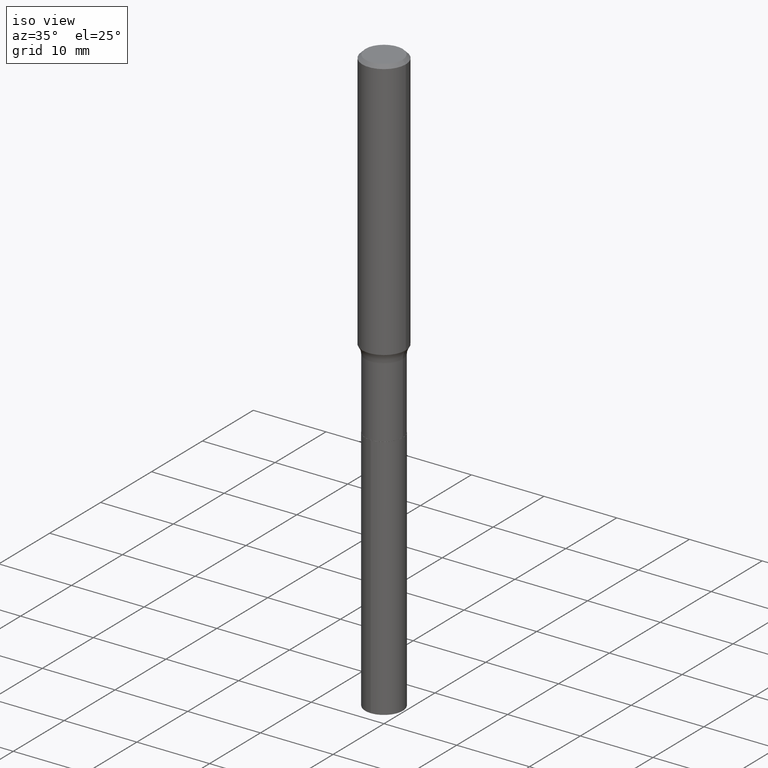
[diagram: clean part render]
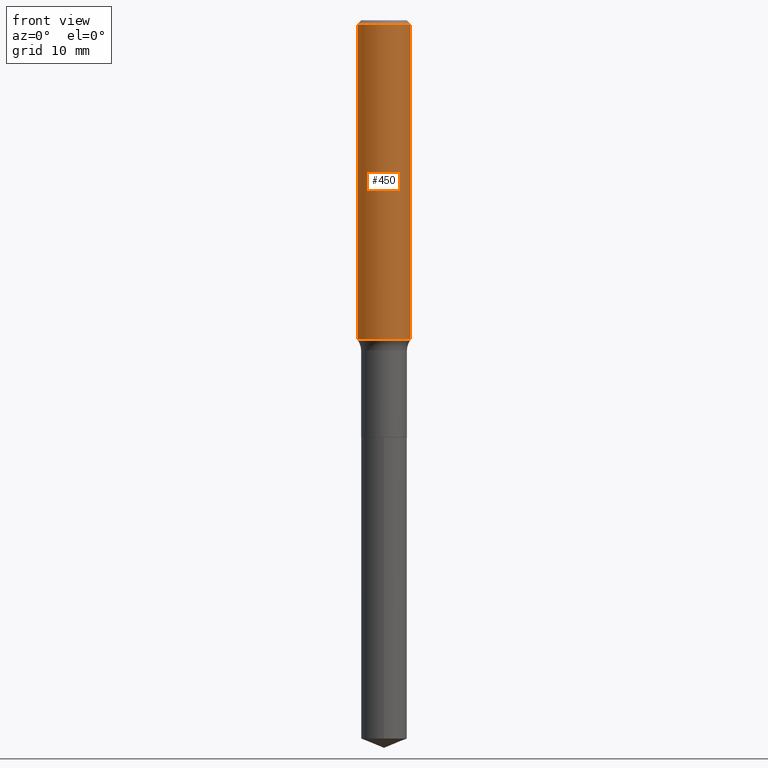
[diagram: tour spotlight — one face highlighted and labeled with its STEP entity id]
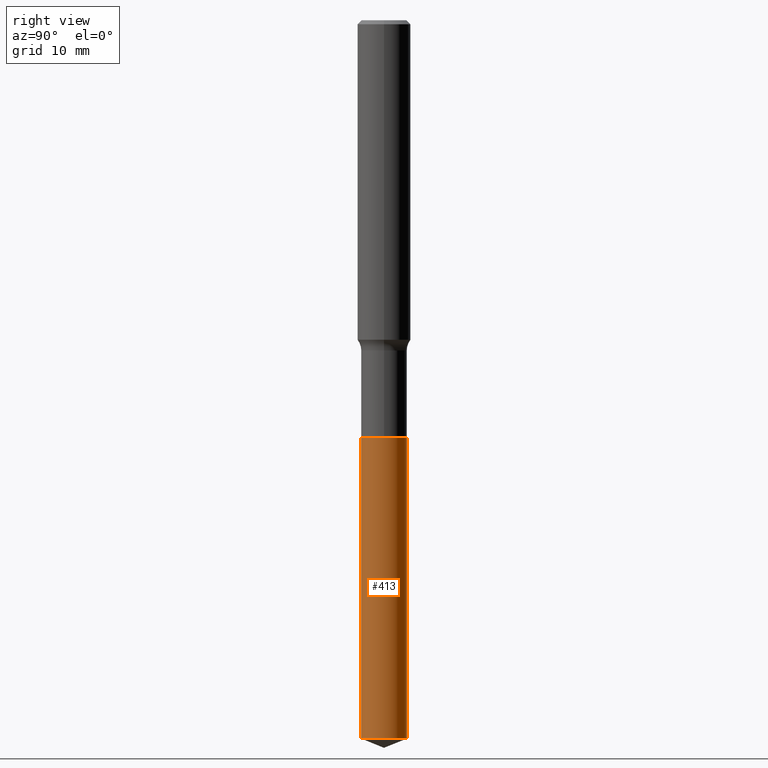
[diagram: tour spotlight — one face highlighted and labeled with its STEP entity id]
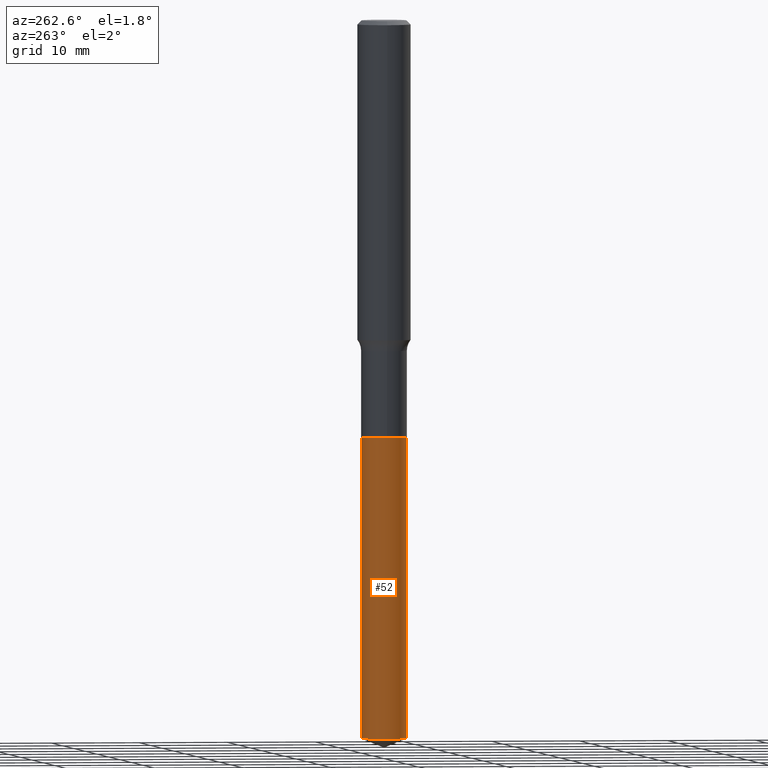
[diagram: tour spotlight — one face highlighted and labeled with its STEP entity id]
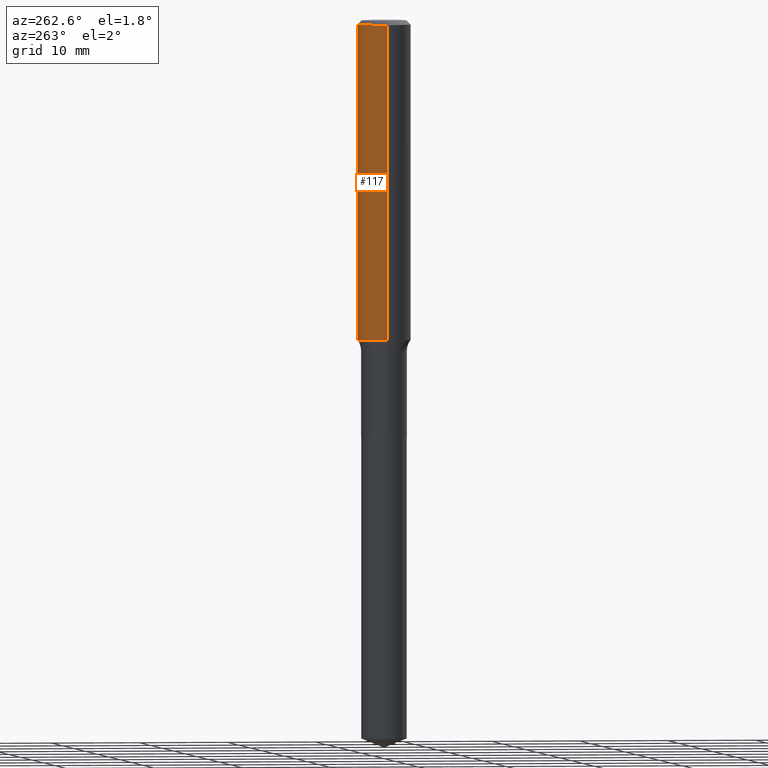
[diagram: tour spotlight — one face highlighted and labeled with its STEP entity id]
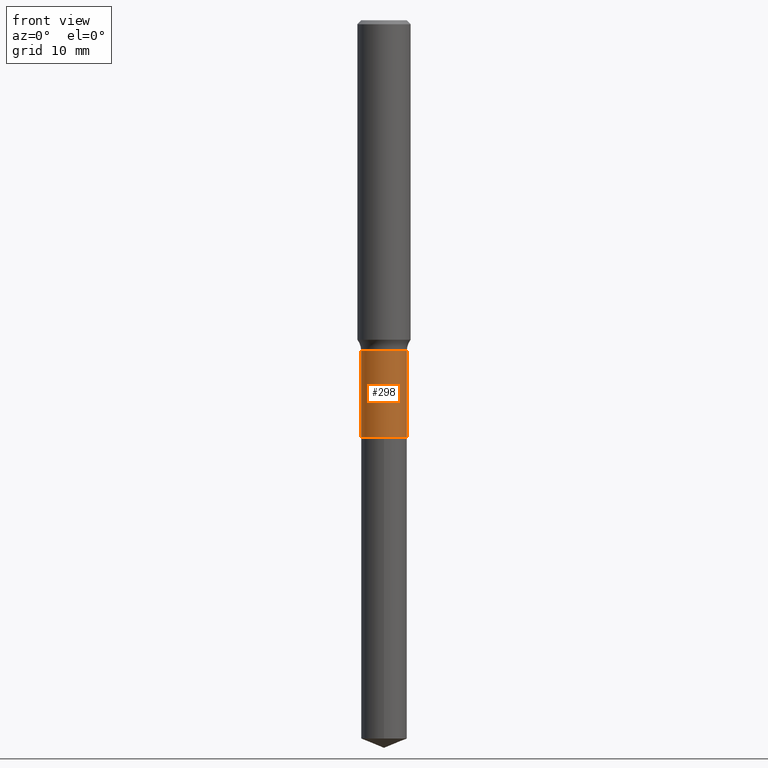
[diagram: tour spotlight — one face highlighted and labeled with its STEP entity id]
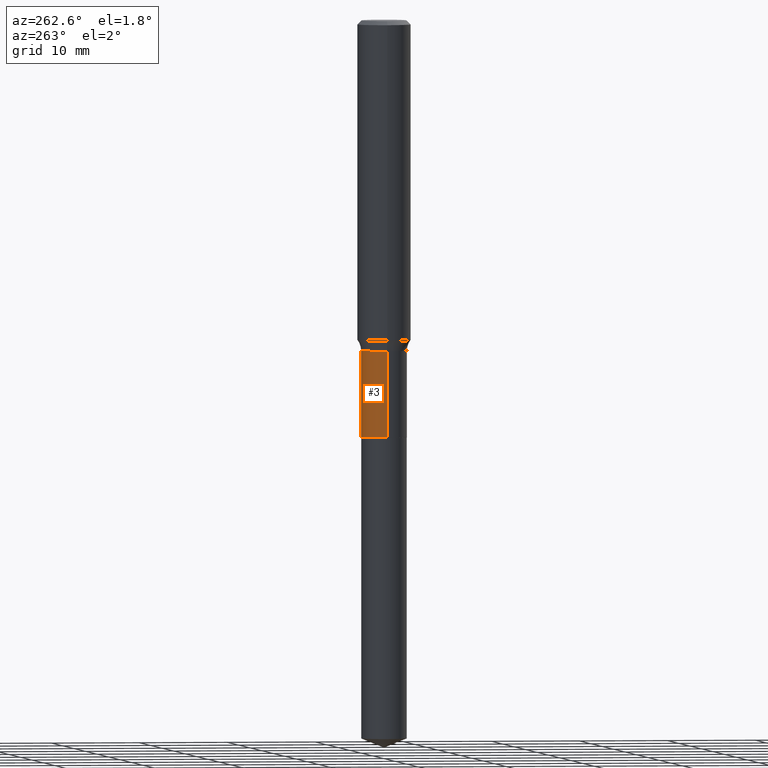
[diagram: tour spotlight — one face highlighted and labeled with its STEP entity id]
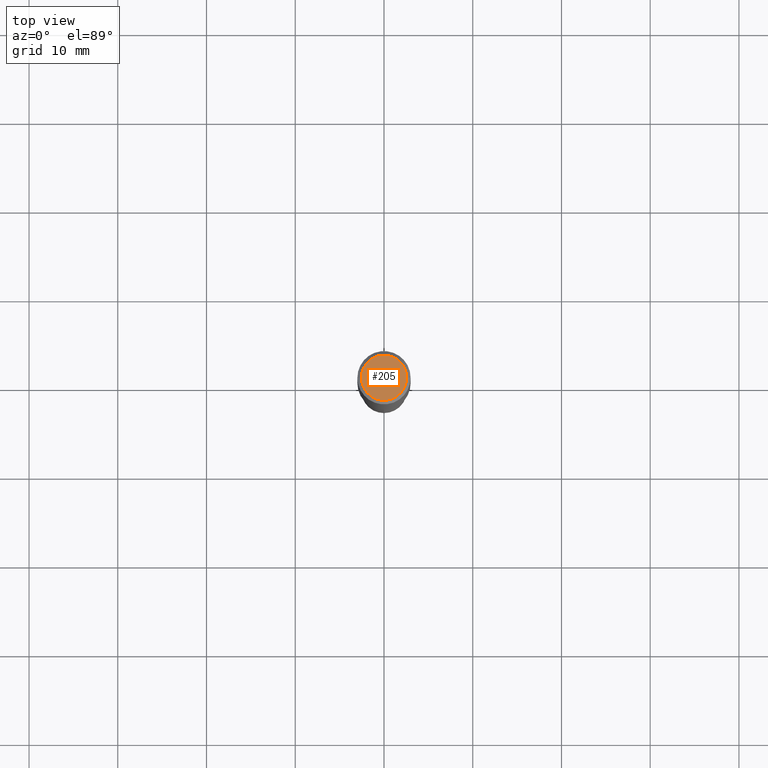
[diagram: tour spotlight — one face highlighted and labeled with its STEP entity id]
A machine part: a face-by-face anatomy tour. The part has 17 B-rep faces; the first image is the clean iso view, then the 7 largest visible faces are spotlighted one at a time (largest first), each with its STEP entity span.

Face 1 — front view, entity #450. In plain terms, the highlighted cylindrical surface (edge-blend (fillet) strip) has radius 2.9997 mm, axis along (-0, 0, 1).
Definition (entity closure, byte-faithful):
#4 = DIRECTION ( 'NONE',  ( -2.445468806185136597E-29, 3.491481338843145583E-15, 1.000000000000000000 ) ) ;
#22 = AXIS2_PLACEMENT_3D ( 'NONE', #125, #354, #431 ) ;
#23 = ORIENTED_EDGE ( 'NONE', *, *, #134, .T. ) ;
#33 = AXIS2_PLACEMENT_3D ( 'NONE', #196, #4, #140 ) ;
#49 = DIRECTION ( 'NONE',  ( -2.445468806185136877E-29, 3.491481338843145188E-15, 1.000000000000000000 ) ) ;
#51 = CYLINDRICAL_SURFACE ( 'NONE', #22, 0.1181000000000000799 ) ;
#81 = DIRECTION ( 'NONE',  ( -2.445468806185136877E-29, 3.491481338843145188E-15, 1.000000000000000000 ) ) ;
#91 = VERTEX_POINT ( 'NONE', #490 ) ;
#96 = EDGE_LOOP ( 'NONE', ( #273, #263, #23, #266 ) ) ;
#125 = CARTESIAN_POINT ( 'NONE',  ( 0.000000000000000000, 0.000000000000000000, 0.000000000000000000 ) ) ;
#134 = EDGE_CURVE ( 'NONE', #310, #345, #145, .T. ) ;
#138 = CIRCLE ( 'NONE', #360, 0.1180999999999999966 ) ;
#140 = DIRECTION ( 'NONE',  ( 1.000000000000000000, -6.982962677686270655E-15, 0.000000000000000000 ) ) ;
#145 = LINE ( 'NONE', #375, #449 ) ;
#173 = EDGE_CURVE ( 'NONE', #245, #310, #244, .T. ) ;
#196 = CARTESIAN_POINT ( 'NONE',  ( 3.466352791233351524E-29, -4.949033107201224167E-15, -1.417459418196695520 ) ) ;
#216 = EDGE_CURVE ( 'NONE', #91, #345, #138, .T. ) ;
#244 = CIRCLE ( 'NONE', #33, 0.1181000000000001632 ) ;
#245 = VERTEX_POINT ( 'NONE', #353 ) ;
#255 = VECTOR ( 'NONE', #49, 39.37007874015748143 ) ;
#263 = ORIENTED_EDGE ( 'NONE', *, *, #173, .T. ) ;
#266 = ORIENTED_EDGE ( 'NONE', *, *, #216, .F. ) ;
#273 = ORIENTED_EDGE ( 'NONE', *, *, #446, .F. ) ;
#310 = VERTEX_POINT ( 'NONE', #479 ) ;
#334 = CARTESIAN_POINT ( 'NONE',  ( 0.1180999999999999966, -8.865394841523548556E-16, -0.01771500000000011607 ) ) ;
#345 = VERTEX_POINT ( 'NONE', #334 ) ;
#353 = CARTESIAN_POINT ( 'NONE',  ( -0.1181000000000001632, -4.109882136268544392E-15, -1.417459418196695520 ) ) ;
#354 = DIRECTION ( 'NONE',  ( -2.445468806185136597E-29, 3.491481338843145583E-15, 1.000000000000000000 ) ) ;
#360 = AXIS2_PLACEMENT_3D ( 'NONE', #447, #373, #371 ) ;
#371 = DIRECTION ( 'NONE',  ( 1.000000000000000000, -6.982962677686266711E-15, 0.000000000000000000 ) ) ;
#373 = DIRECTION ( 'NONE',  ( -2.445468806185136597E-29, 3.491481338843145583E-15, 1.000000000000000000 ) ) ;
#375 = CARTESIAN_POINT ( 'NONE',  ( 0.1181000000000000799, -8.246878922347486570E-16, 5.758764772215004644E-30 ) ) ;
#386 = LINE ( 'NONE', #390, #255 ) ;
#390 = CARTESIAN_POINT ( 'NONE',  ( -0.1181000000000000799, 8.391509709326788873E-16, -5.809262341591047988E-30 ) ) ;
#431 = DIRECTION ( 'NONE',  ( 1.000000000000000000, -6.982962677686266711E-15, 4.876176775795936353E-29 ) ) ;
#446 = EDGE_CURVE ( 'NONE', #245, #91, #386, .T. ) ;
#447 = CARTESIAN_POINT ( 'NONE',  ( 4.332147990156998495E-31, -6.185159191760672860E-17, -0.01771500000000011607 ) ) ;
#449 = VECTOR ( 'NONE', #81, 39.37007874015748143 ) ;
#450 = ADVANCED_FACE ( 'NONE', ( #470 ), #51, .T. ) ;
#470 = FACE_OUTER_BOUND ( 'NONE', #96, .T. ) ;
#479 = CARTESIAN_POINT ( 'NONE',  ( 0.1181000000000001632, -5.773720999435972430E-15, -1.417459418196695520 ) ) ;
#490 = CARTESIAN_POINT ( 'NONE',  ( -0.1180999999999999966, -1.666291378626735802E-15, -0.01771500000000011607 ) ) ;

Face 2 — right view, entity #413. In plain terms, the highlighted cylindrical surface (edge-blend (fillet) strip) has radius 2.5794 mm, axis along (-0, 0, 1).
Definition (entity closure, byte-faithful):
#2 = LINE ( 'NONE', #290, #287 ) ;
#25 = AXIS2_PLACEMENT_3D ( 'NONE', #203, #236, #302 ) ;
#40 = CARTESIAN_POINT ( 'NONE',  ( -7.091198599189951267E-16, -0.1015500000000064545, -1.849999999999999867 ) ) ;
#77 = CARTESIAN_POINT ( 'NONE',  ( -7.091198599189622904E-16, -0.1015500000000110897, -3.186971136766439727 ) ) ;
#83 = EDGE_CURVE ( 'NONE', #130, #466, #455, .T. ) ;
#93 = EDGE_CURVE ( 'NONE', #204, #350, #2, .T. ) ;
#111 = DIRECTION ( 'NONE',  ( -2.445536762474490488E-29, 3.491384021568959550E-15, 1.000000000000000000 ) ) ;
#118 = ORIENTED_EDGE ( 'NONE', *, *, #258, .F. ) ;
#120 = CARTESIAN_POINT ( 'NONE',  ( 7.793729356772140536E-29, -1.112712014106505691E-14, -3.186971136766440171 ) ) ;
#130 = VERTEX_POINT ( 'NONE', #461 ) ;
#146 = CIRCLE ( 'NONE', #432, 0.1015500000000000014 ) ;
#151 = FACE_OUTER_BOUND ( 'NONE', #274, .T. ) ;
#169 = ORIENTED_EDGE ( 'NONE', *, *, #93, .F. ) ;
#203 = CARTESIAN_POINT ( 'NONE',  ( 4.524117291442502816E-29, -6.459240476859820373E-15, -1.850000000000000311 ) ) ;
#204 = VERTEX_POINT ( 'NONE', #77 ) ;
#236 = DIRECTION ( 'NONE',  ( -2.445536762474490208E-29, 3.491384021568959550E-15, 1.000000000000000000 ) ) ;
#258 = EDGE_CURVE ( 'NONE', #350, #466, #417, .T. ) ;
#260 = DIRECTION ( 'NONE',  ( -2.445536762474490208E-29, 3.491384021568959550E-15, 1.000000000000000000 ) ) ;
#274 = EDGE_LOOP ( 'NONE', ( #400, #328, #118, #169 ) ) ;
#287 = VECTOR ( 'NONE', #453, 39.37007874015748143 ) ;
#290 = CARTESIAN_POINT ( 'NONE',  ( -7.091198599189951267E-16, -0.1015500000000064545, -1.849999999999999867 ) ) ;
#302 = DIRECTION ( 'NONE',  ( -6.982962677686266711E-15, -1.000000000000000000, 2.690150658458161520E-15 ) ) ;
#303 = CYLINDRICAL_SURFACE ( 'NONE', #364, 0.1015500000000000014 ) ;
#312 = DIRECTION ( 'NONE',  ( -6.982962677686266711E-15, -1.000000000000000000, 2.690150658458161520E-15 ) ) ;
#328 = ORIENTED_EDGE ( 'NONE', *, *, #83, .T. ) ;
#346 = CARTESIAN_POINT ( 'NONE',  ( 7.215561481644269108E-16, 0.1015499999999935482, -1.850000000000000533 ) ) ;
#347 = CARTESIAN_POINT ( 'NONE',  ( 7.215561481644597472E-16, 0.1015499999999935482, -1.850000000000000533 ) ) ;
#350 = VERTEX_POINT ( 'NONE', #40 ) ;
#352 = DIRECTION ( 'NONE',  ( -6.982962677686266711E-15, -1.000000000000000000, 5.380301316916323039E-15 ) ) ;
#364 = AXIS2_PLACEMENT_3D ( 'NONE', #464, #260, #312 ) ;
#400 = ORIENTED_EDGE ( 'NONE', *, *, #486, .T. ) ;
#413 = ADVANCED_FACE ( 'NONE', ( #151 ), #303, .T. ) ;
#417 = CIRCLE ( 'NONE', #25, 0.1015500000000000014 ) ;
#428 = DIRECTION ( 'NONE',  ( -2.445536762474490208E-29, 3.491384021568959550E-15, 1.000000000000000000 ) ) ;
#432 = AXIS2_PLACEMENT_3D ( 'NONE', #120, #428, #352 ) ;
#453 = DIRECTION ( 'NONE',  ( -2.445536762474490488E-29, 3.491384021568959550E-15, 1.000000000000000000 ) ) ;
#455 = LINE ( 'NONE', #346, #477 ) ;
#461 = CARTESIAN_POINT ( 'NONE',  ( 7.215561481644591555E-16, 0.1015499999999888436, -3.186971136766440615 ) ) ;
#464 = CARTESIAN_POINT ( 'NONE',  ( 4.524117291442502816E-29, -6.459240476859820373E-15, -1.850000000000000311 ) ) ;
#466 = VERTEX_POINT ( 'NONE', #347 ) ;
#477 = VECTOR ( 'NONE', #111, 39.37007874015748143 ) ;
#486 = EDGE_CURVE ( 'NONE', #204, #130, #146, .T. ) ;

Face 3 — auxiliary view, entity #52. In plain terms, the highlighted cylindrical surface (edge-blend (fillet) strip) has radius 2.5794 mm, axis along (-0, 0, 1).
Definition (entity closure, byte-faithful):
#2 = LINE ( 'NONE', #290, #287 ) ;
#6 = EDGE_CURVE ( 'NONE', #466, #350, #237, .T. ) ;
#8 = AXIS2_PLACEMENT_3D ( 'NONE', #296, #335, #187 ) ;
#37 = CYLINDRICAL_SURFACE ( 'NONE', #8, 0.1015500000000000014 ) ;
#39 = CARTESIAN_POINT ( 'NONE',  ( 4.524117291442502816E-29, -6.459240476859820373E-15, -1.850000000000000311 ) ) ;
#40 = CARTESIAN_POINT ( 'NONE',  ( -7.091198599189951267E-16, -0.1015500000000064545, -1.849999999999999867 ) ) ;
#52 = ADVANCED_FACE ( 'NONE', ( #116 ), #37, .T. ) ;
#67 = DIRECTION ( 'NONE',  ( -2.445536762474490208E-29, 3.491384021568959550E-15, 1.000000000000000000 ) ) ;
#73 = CARTESIAN_POINT ( 'NONE',  ( 7.793729356772140536E-29, -1.112712014106505691E-14, -3.186971136766440171 ) ) ;
#77 = CARTESIAN_POINT ( 'NONE',  ( -7.091198599189622904E-16, -0.1015500000000110897, -3.186971136766439727 ) ) ;
#83 = EDGE_CURVE ( 'NONE', #130, #466, #455, .T. ) ;
#93 = EDGE_CURVE ( 'NONE', #204, #350, #2, .T. ) ;
#111 = DIRECTION ( 'NONE',  ( -2.445536762474490488E-29, 3.491384021568959550E-15, 1.000000000000000000 ) ) ;
#116 = FACE_OUTER_BOUND ( 'NONE', #210, .T. ) ;
#130 = VERTEX_POINT ( 'NONE', #461 ) ;
#187 = DIRECTION ( 'NONE',  ( -6.982962677686266711E-15, -1.000000000000000000, 2.690150658458161520E-15 ) ) ;
#189 = DIRECTION ( 'NONE',  ( -6.982962677686266711E-15, -1.000000000000000000, 5.380301316916323039E-15 ) ) ;
#204 = VERTEX_POINT ( 'NONE', #77 ) ;
#210 = EDGE_LOOP ( 'NONE', ( #445, #482, #385, #357 ) ) ;
#215 = DIRECTION ( 'NONE',  ( -6.982962677686266711E-15, -1.000000000000000000, 2.690150658458161520E-15 ) ) ;
#237 = CIRCLE ( 'NONE', #286, 0.1015500000000000014 ) ;
#286 = AXIS2_PLACEMENT_3D ( 'NONE', #39, #363, #215 ) ;
#287 = VECTOR ( 'NONE', #453, 39.37007874015748143 ) ;
#290 = CARTESIAN_POINT ( 'NONE',  ( -7.091198599189951267E-16, -0.1015500000000064545, -1.849999999999999867 ) ) ;
#296 = CARTESIAN_POINT ( 'NONE',  ( 4.524117291442502816E-29, -6.459240476859820373E-15, -1.850000000000000311 ) ) ;
#318 = CIRCLE ( 'NONE', #384, 0.1015500000000000014 ) ;
#335 = DIRECTION ( 'NONE',  ( -2.445536762474490208E-29, 3.491384021568959550E-15, 1.000000000000000000 ) ) ;
#346 = CARTESIAN_POINT ( 'NONE',  ( 7.215561481644269108E-16, 0.1015499999999935482, -1.850000000000000533 ) ) ;
#347 = CARTESIAN_POINT ( 'NONE',  ( 7.215561481644597472E-16, 0.1015499999999935482, -1.850000000000000533 ) ) ;
#350 = VERTEX_POINT ( 'NONE', #40 ) ;
#357 = ORIENTED_EDGE ( 'NONE', *, *, #6, .F. ) ;
#363 = DIRECTION ( 'NONE',  ( -2.445536762474490208E-29, 3.491384021568959550E-15, 1.000000000000000000 ) ) ;
#367 = EDGE_CURVE ( 'NONE', #130, #204, #318, .T. ) ;
#384 = AXIS2_PLACEMENT_3D ( 'NONE', #73, #67, #189 ) ;
#385 = ORIENTED_EDGE ( 'NONE', *, *, #93, .T. ) ;
#445 = ORIENTED_EDGE ( 'NONE', *, *, #83, .F. ) ;
#453 = DIRECTION ( 'NONE',  ( -2.445536762474490488E-29, 3.491384021568959550E-15, 1.000000000000000000 ) ) ;
#455 = LINE ( 'NONE', #346, #477 ) ;
#461 = CARTESIAN_POINT ( 'NONE',  ( 7.215561481644591555E-16, 0.1015499999999888436, -3.186971136766440615 ) ) ;
#466 = VERTEX_POINT ( 'NONE', #347 ) ;
#477 = VECTOR ( 'NONE', #111, 39.37007874015748143 ) ;
#482 = ORIENTED_EDGE ( 'NONE', *, *, #367, .T. ) ;

Face 4 — auxiliary view, entity #117. In plain terms, the highlighted cylindrical surface (edge-blend (fillet) strip) has radius 2.9997 mm, axis along (-0, 0, 1).
Definition (entity closure, byte-faithful):
#24 = AXIS2_PLACEMENT_3D ( 'NONE', #394, #436, #342 ) ;
#36 = DIRECTION ( 'NONE',  ( 1.000000000000000000, -6.982962677686266711E-15, 4.876176775795936353E-29 ) ) ;
#49 = DIRECTION ( 'NONE',  ( -2.445468806185136877E-29, 3.491481338843145188E-15, 1.000000000000000000 ) ) ;
#81 = DIRECTION ( 'NONE',  ( -2.445468806185136877E-29, 3.491481338843145188E-15, 1.000000000000000000 ) ) ;
#91 = VERTEX_POINT ( 'NONE', #490 ) ;
#108 = FACE_OUTER_BOUND ( 'NONE', #469, .T. ) ;
#117 = ADVANCED_FACE ( 'NONE', ( #108 ), #164, .T. ) ;
#134 = EDGE_CURVE ( 'NONE', #310, #345, #145, .T. ) ;
#145 = LINE ( 'NONE', #375, #449 ) ;
#164 = CYLINDRICAL_SURFACE ( 'NONE', #459, 0.1181000000000000799 ) ;
#175 = DIRECTION ( 'NONE',  ( -2.445468806185136597E-29, 3.491481338843145583E-15, 1.000000000000000000 ) ) ;
#180 = CARTESIAN_POINT ( 'NONE',  ( 0.000000000000000000, 0.000000000000000000, 0.000000000000000000 ) ) ;
#201 = CIRCLE ( 'NONE', #217, 0.1181000000000001632 ) ;
#217 = AXIS2_PLACEMENT_3D ( 'NONE', #411, #175, #229 ) ;
#227 = DIRECTION ( 'NONE',  ( -2.445468806185136597E-29, 3.491481338843145583E-15, 1.000000000000000000 ) ) ;
#229 = DIRECTION ( 'NONE',  ( 1.000000000000000000, -6.982962677686270655E-15, 0.000000000000000000 ) ) ;
#245 = VERTEX_POINT ( 'NONE', #353 ) ;
#248 = ORIENTED_EDGE ( 'NONE', *, *, #463, .F. ) ;
#255 = VECTOR ( 'NONE', #49, 39.37007874015748143 ) ;
#295 = EDGE_CURVE ( 'NONE', #310, #245, #201, .T. ) ;
#310 = VERTEX_POINT ( 'NONE', #479 ) ;
#334 = CARTESIAN_POINT ( 'NONE',  ( 0.1180999999999999966, -8.865394841523548556E-16, -0.01771500000000011607 ) ) ;
#342 = DIRECTION ( 'NONE',  ( 1.000000000000000000, -6.982962677686266711E-15, 0.000000000000000000 ) ) ;
#345 = VERTEX_POINT ( 'NONE', #334 ) ;
#353 = CARTESIAN_POINT ( 'NONE',  ( -0.1181000000000001632, -4.109882136268544392E-15, -1.417459418196695520 ) ) ;
#369 = ORIENTED_EDGE ( 'NONE', *, *, #446, .T. ) ;
#375 = CARTESIAN_POINT ( 'NONE',  ( 0.1181000000000000799, -8.246878922347486570E-16, 5.758764772215004644E-30 ) ) ;
#386 = LINE ( 'NONE', #390, #255 ) ;
#390 = CARTESIAN_POINT ( 'NONE',  ( -0.1181000000000000799, 8.391509709326788873E-16, -5.809262341591047988E-30 ) ) ;
#394 = CARTESIAN_POINT ( 'NONE',  ( 4.332147990156998495E-31, -6.185159191760672860E-17, -0.01771500000000011607 ) ) ;
#411 = CARTESIAN_POINT ( 'NONE',  ( 3.466352791233351524E-29, -4.949033107201224167E-15, -1.417459418196695520 ) ) ;
#427 = ORIENTED_EDGE ( 'NONE', *, *, #134, .F. ) ;
#436 = DIRECTION ( 'NONE',  ( -2.445468806185136597E-29, 3.491481338843145583E-15, 1.000000000000000000 ) ) ;
#443 = ORIENTED_EDGE ( 'NONE', *, *, #295, .T. ) ;
#446 = EDGE_CURVE ( 'NONE', #245, #91, #386, .T. ) ;
#449 = VECTOR ( 'NONE', #81, 39.37007874015748143 ) ;
#459 = AXIS2_PLACEMENT_3D ( 'NONE', #180, #227, #36 ) ;
#463 = EDGE_CURVE ( 'NONE', #345, #91, #485, .T. ) ;
#469 = EDGE_LOOP ( 'NONE', ( #443, #369, #248, #427 ) ) ;
#479 = CARTESIAN_POINT ( 'NONE',  ( 0.1181000000000001632, -5.773720999435972430E-15, -1.417459418196695520 ) ) ;
#485 = CIRCLE ( 'NONE', #24, 0.1180999999999999966 ) ;
#490 = CARTESIAN_POINT ( 'NONE',  ( -0.1180999999999999966, -1.666291378626735802E-15, -0.01771500000000011607 ) ) ;

Face 5 — front view, entity #298. In plain terms, the highlighted cylindrical surface (edge-blend (fillet) strip) has radius 2.5794 mm, axis along (-0, 0, 1).
Definition (entity closure, byte-faithful):
#1 = ORIENTED_EDGE ( 'NONE', *, *, #234, .T. ) ;
#44 = EDGE_CURVE ( 'NONE', #135, #388, #181, .T. ) ;
#45 = CARTESIAN_POINT ( 'NONE',  ( 4.522894557039411136E-29, -6.457494736190398870E-15, -1.849500000000000366 ) ) ;
#57 = AXIS2_PLACEMENT_3D ( 'NONE', #372, #292, #381 ) ;
#62 = ORIENTED_EDGE ( 'NONE', *, *, #278, .T. ) ;
#66 = DIRECTION ( 'NONE',  ( -2.445468806185136877E-29, 3.491481338843145188E-15, 1.000000000000000000 ) ) ;
#135 = VERTEX_POINT ( 'NONE', #380 ) ;
#136 = CARTESIAN_POINT ( 'NONE',  ( 0.1015499999999999736, -7.091198599190401904E-16, 4.951757515820771671E-30 ) ) ;
#141 = CARTESIAN_POINT ( 'NONE',  ( 0.1015499999999999875, -7.166614596109438863E-15, -1.849500000000000366 ) ) ;
#157 = DIRECTION ( 'NONE',  ( 1.000000000000000000, -6.982962677686265922E-15, 0.000000000000000000 ) ) ;
#172 = VECTOR ( 'NONE', #66, 39.37007874015748143 ) ;
#181 = CIRCLE ( 'NONE', #57, 0.1015499999999999597 ) ;
#184 = DIRECTION ( 'NONE',  ( -2.445468806185136597E-29, 3.491481338843145583E-15, 1.000000000000000000 ) ) ;
#224 = EDGE_CURVE ( 'NONE', #316, #135, #230, .T. ) ;
#225 = CARTESIAN_POINT ( 'NONE',  ( 0.000000000000000000, 0.000000000000000000, 0.000000000000000000 ) ) ;
#226 = CARTESIAN_POINT ( 'NONE',  ( 0.1015499999999999597, -5.825885761993670479E-15, -1.465500000000000247 ) ) ;
#230 = LINE ( 'NONE', #378, #277 ) ;
#234 = EDGE_CURVE ( 'NONE', #365, #388, #458, .T. ) ;
#238 = AXIS2_PLACEMENT_3D ( 'NONE', #225, #184, #326 ) ;
#250 = ORIENTED_EDGE ( 'NONE', *, *, #44, .F. ) ;
#251 = CIRCLE ( 'NONE', #368, 0.1015499999999999875 ) ;
#267 = ORIENTED_EDGE ( 'NONE', *, *, #224, .F. ) ;
#275 = CARTESIAN_POINT ( 'NONE',  ( -0.1015499999999999875, -5.065574170968132732E-15, -1.849500000000000366 ) ) ;
#277 = VECTOR ( 'NONE', #456, 39.37007874015748143 ) ;
#278 = EDGE_CURVE ( 'NONE', #316, #365, #251, .T. ) ;
#292 = DIRECTION ( 'NONE',  ( -2.445468806185136597E-29, 3.491481338843145583E-15, 1.000000000000000000 ) ) ;
#298 = ADVANCED_FACE ( 'NONE', ( #330 ), #377, .T. ) ;
#308 = EDGE_LOOP ( 'NONE', ( #267, #62, #1, #250 ) ) ;
#316 = VERTEX_POINT ( 'NONE', #275 ) ;
#326 = DIRECTION ( 'NONE',  ( 1.000000000000000000, -6.982962677686266711E-15, 4.876176775795935793E-29 ) ) ;
#330 = FACE_OUTER_BOUND ( 'NONE', #308, .T. ) ;
#348 = DIRECTION ( 'NONE',  ( -2.445468806185136597E-29, 3.491481338843145583E-15, 1.000000000000000000 ) ) ;
#365 = VERTEX_POINT ( 'NONE', #141 ) ;
#368 = AXIS2_PLACEMENT_3D ( 'NONE', #45, #348, #157 ) ;
#372 = CARTESIAN_POINT ( 'NONE',  ( 3.583834535464318409E-29, -5.116765902074630486E-15, -1.465500000000000247 ) ) ;
#377 = CYLINDRICAL_SURFACE ( 'NONE', #238, 0.1015499999999999736 ) ;
#378 = CARTESIAN_POINT ( 'NONE',  ( -0.1015499999999999736, 7.215561481643815513E-16, -4.995178584153855700E-30 ) ) ;
#380 = CARTESIAN_POINT ( 'NONE',  ( -0.1015499999999999597, -5.065574170968132732E-15, -1.465500000000000247 ) ) ;
#381 = DIRECTION ( 'NONE',  ( 1.000000000000000000, -6.982962677686267499E-15, 0.000000000000000000 ) ) ;
#388 = VERTEX_POINT ( 'NONE', #226 ) ;
#456 = DIRECTION ( 'NONE',  ( -2.445468806185136877E-29, 3.491481338843145188E-15, 1.000000000000000000 ) ) ;
#458 = LINE ( 'NONE', #136, #172 ) ;

Face 6 — auxiliary view, entity #3. In plain terms, the highlighted cylindrical surface (edge-blend (fillet) strip) has radius 2.5794 mm, axis along (-0, 0, 1).
Definition (entity closure, byte-faithful):
#3 = ADVANCED_FACE ( 'NONE', ( #321 ), #124, .T. ) ;
#35 = DIRECTION ( 'NONE',  ( -2.445468806185136597E-29, 3.491481338843145583E-15, 1.000000000000000000 ) ) ;
#41 = AXIS2_PLACEMENT_3D ( 'NONE', #110, #35, #256 ) ;
#50 = ORIENTED_EDGE ( 'NONE', *, *, #344, .T. ) ;
#66 = DIRECTION ( 'NONE',  ( -2.445468806185136877E-29, 3.491481338843145188E-15, 1.000000000000000000 ) ) ;
#82 = ORIENTED_EDGE ( 'NONE', *, *, #478, .F. ) ;
#92 = DIRECTION ( 'NONE',  ( -2.445468806185136597E-29, 3.491481338843145583E-15, 1.000000000000000000 ) ) ;
#110 = CARTESIAN_POINT ( 'NONE',  ( 4.522894557039411136E-29, -6.457494736190398870E-15, -1.849500000000000366 ) ) ;
#122 = DIRECTION ( 'NONE',  ( -2.445468806185136597E-29, 3.491481338843145583E-15, 1.000000000000000000 ) ) ;
#124 = CYLINDRICAL_SURFACE ( 'NONE', #448, 0.1015499999999999736 ) ;
#129 = EDGE_LOOP ( 'NONE', ( #50, #361, #82, #213 ) ) ;
#135 = VERTEX_POINT ( 'NONE', #380 ) ;
#136 = CARTESIAN_POINT ( 'NONE',  ( 0.1015499999999999736, -7.091198599190401904E-16, 4.951757515820771671E-30 ) ) ;
#141 = CARTESIAN_POINT ( 'NONE',  ( 0.1015499999999999875, -7.166614596109438863E-15, -1.849500000000000366 ) ) ;
#156 = DIRECTION ( 'NONE',  ( 1.000000000000000000, -6.982962677686267499E-15, 0.000000000000000000 ) ) ;
#172 = VECTOR ( 'NONE', #66, 39.37007874015748143 ) ;
#198 = CARTESIAN_POINT ( 'NONE',  ( 3.583834535464318409E-29, -5.116765902074630486E-15, -1.465500000000000247 ) ) ;
#213 = ORIENTED_EDGE ( 'NONE', *, *, #234, .F. ) ;
#224 = EDGE_CURVE ( 'NONE', #316, #135, #230, .T. ) ;
#226 = CARTESIAN_POINT ( 'NONE',  ( 0.1015499999999999597, -5.825885761993670479E-15, -1.465500000000000247 ) ) ;
#230 = LINE ( 'NONE', #378, #277 ) ;
#234 = EDGE_CURVE ( 'NONE', #365, #388, #458, .T. ) ;
#256 = DIRECTION ( 'NONE',  ( 1.000000000000000000, -6.982962677686265922E-15, 0.000000000000000000 ) ) ;
#268 = CARTESIAN_POINT ( 'NONE',  ( 0.000000000000000000, 0.000000000000000000, 0.000000000000000000 ) ) ;
#275 = CARTESIAN_POINT ( 'NONE',  ( -0.1015499999999999875, -5.065574170968132732E-15, -1.849500000000000366 ) ) ;
#277 = VECTOR ( 'NONE', #456, 39.37007874015748143 ) ;
#279 = CIRCLE ( 'NONE', #366, 0.1015499999999999597 ) ;
#315 = DIRECTION ( 'NONE',  ( 1.000000000000000000, -6.982962677686266711E-15, 4.876176775795935793E-29 ) ) ;
#316 = VERTEX_POINT ( 'NONE', #275 ) ;
#321 = FACE_OUTER_BOUND ( 'NONE', #129, .T. ) ;
#344 = EDGE_CURVE ( 'NONE', #365, #316, #401, .T. ) ;
#361 = ORIENTED_EDGE ( 'NONE', *, *, #224, .T. ) ;
#365 = VERTEX_POINT ( 'NONE', #141 ) ;
#366 = AXIS2_PLACEMENT_3D ( 'NONE', #198, #122, #156 ) ;
#378 = CARTESIAN_POINT ( 'NONE',  ( -0.1015499999999999736, 7.215561481643815513E-16, -4.995178584153855700E-30 ) ) ;
#380 = CARTESIAN_POINT ( 'NONE',  ( -0.1015499999999999597, -5.065574170968132732E-15, -1.465500000000000247 ) ) ;
#388 = VERTEX_POINT ( 'NONE', #226 ) ;
#401 = CIRCLE ( 'NONE', #41, 0.1015499999999999875 ) ;
#448 = AXIS2_PLACEMENT_3D ( 'NONE', #268, #92, #315 ) ;
#456 = DIRECTION ( 'NONE',  ( -2.445468806185136877E-29, 3.491481338843145188E-15, 1.000000000000000000 ) ) ;
#458 = LINE ( 'NONE', #136, #172 ) ;
#478 = EDGE_CURVE ( 'NONE', #388, #135, #279, .T. ) ;

Face 7 — top view, entity #205. In plain terms, the highlighted planar face has unit normal (0, -0, -1).
Definition (entity closure, byte-faithful):
#72 = DIRECTION ( 'NONE',  ( 2.438088387897960049E-29, -3.491481338843145188E-15, -1.000000000000000000 ) ) ;
#80 = DIRECTION ( 'NONE',  ( -2.445468806185136597E-29, 3.491481338843145583E-15, 1.000000000000000000 ) ) ;
#85 = DIRECTION ( 'NONE',  ( -2.445468806185136597E-29, 3.491481338843145583E-15, 1.000000000000000000 ) ) ;
#87 = ORIENTED_EDGE ( 'NONE', *, *, #422, .T. ) ;
#89 = DIRECTION ( 'NONE',  ( 1.000000000000000000, -6.982962677686266711E-15, 4.875668750515085695E-29 ) ) ;
#97 = VERTEX_POINT ( 'NONE', #148 ) ;
#109 = CARTESIAN_POINT ( 'NONE',  ( 0.1003850000000000159, -7.803837484803599345E-16, -2.868857591682071522E-17 ) ) ;
#114 = CARTESIAN_POINT ( 'NONE',  ( 7.015701749847187307E-46, -1.001656274515824970E-31, -2.868857591682589212E-17 ) ) ;
#148 = CARTESIAN_POINT ( 'NONE',  ( -0.1003850000000000159, 7.319105043583384717E-16, -2.868857591683090262E-17 ) ) ;
#150 = DIRECTION ( 'NONE',  ( -1.000000000000000000, 6.982962677686265922E-15, -4.876176775795935793E-29 ) ) ;
#192 = AXIS2_PLACEMENT_3D ( 'NONE', #484, #72, #150 ) ;
#205 = ADVANCED_FACE ( 'NONE', ( #297 ), #412, .F. ) ;
#211 = VERTEX_POINT ( 'NONE', #109 ) ;
#240 = EDGE_LOOP ( 'NONE', ( #87, #392 ) ) ;
#242 = CARTESIAN_POINT ( 'NONE',  ( 7.015701749847187307E-46, -1.001656274515824970E-31, -2.868857591682589212E-17 ) ) ;
#280 = CIRCLE ( 'NONE', #437, 0.1003850000000000159 ) ;
#297 = FACE_OUTER_BOUND ( 'NONE', #240, .T. ) ;
#306 = AXIS2_PLACEMENT_3D ( 'NONE', #242, #85, #89 ) ;
#307 = CIRCLE ( 'NONE', #306, 0.1003850000000000159 ) ;
#392 = ORIENTED_EDGE ( 'NONE', *, *, #396, .T. ) ;
#396 = EDGE_CURVE ( 'NONE', #211, #97, #280, .T. ) ;
#412 = PLANE ( 'NONE',  #192 ) ;
#422 = EDGE_CURVE ( 'NONE', #97, #211, #307, .T. ) ;
#437 = AXIS2_PLACEMENT_3D ( 'NONE', #114, #80, #489 ) ;
#484 = CARTESIAN_POINT ( 'NONE',  ( 3.507850874923593654E-46, -5.008281372579124849E-32, -1.434428795841294606E-17 ) ) ;
#489 = DIRECTION ( 'NONE',  ( 1.000000000000000000, -6.982962677686266711E-15, 4.875668750515085695E-29 ) ) ;